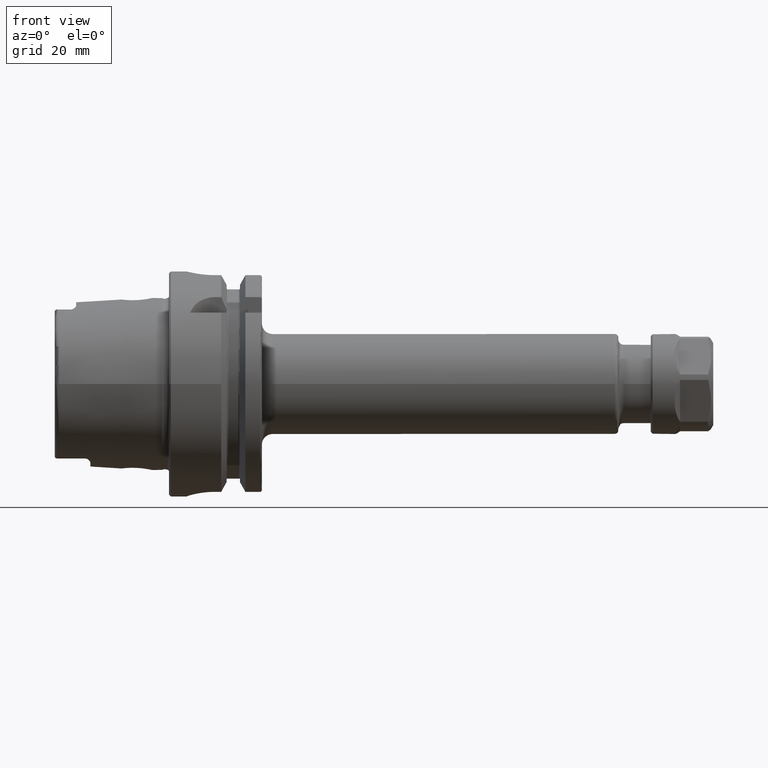
[diagram: clean part render]
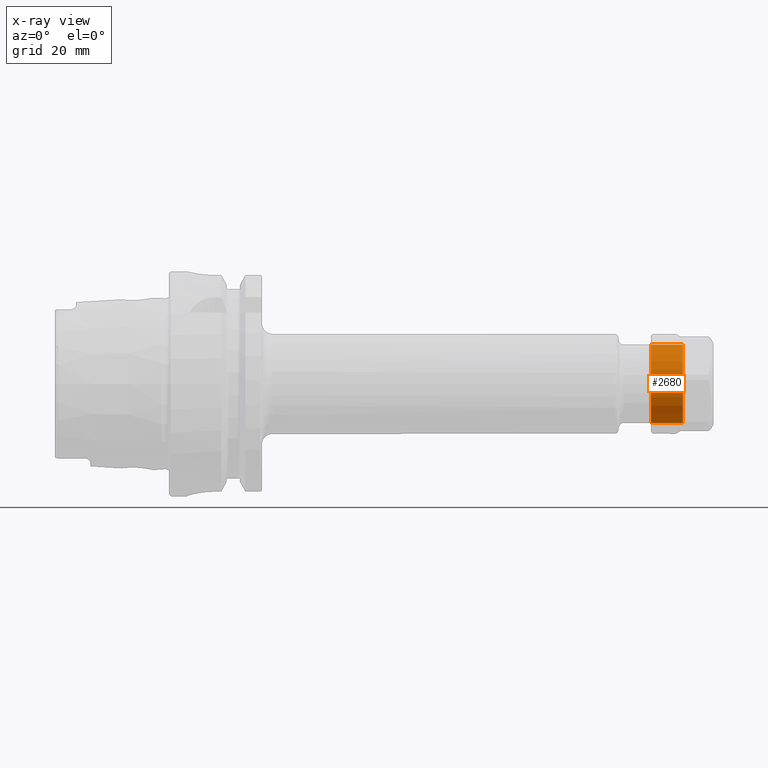
[diagram: x-ray — body ghosted, one internal face saturated and labeled with its STEP entity id]
A machine part, front view, then the same camera in x-ray: the body is ghosted and one INTERNAL B-rep face — a face not visible from any outside direction — is saturated and labeled: STEP entity #2680.
In plain terms, the highlighted cylindrical surface (bore or boss wall) has radius 11 mm, axis along (-1, 0, 0).
Its self-contained STEP definition (entity closure, byte-faithful):
#404=FACE_OUTER_BOUND('',#574,.T.);
#574=EDGE_LOOP('',(#2481,#2482,#2483,#2484));
#720=LINE('',#5538,#866);
#866=VECTOR('',#3877,11.);
#1025=CIRCLE('',#3072,11.);
#1026=CIRCLE('',#3073,11.);
#1285=VERTEX_POINT('',#5535);
#1286=VERTEX_POINT('',#5537);
#1684=EDGE_CURVE('',#1285,#1285,#1025,.T.);
#1685=EDGE_CURVE('',#1285,#1286,#720,.T.);
#1686=EDGE_CURVE('',#1286,#1286,#1026,.T.);
#2481=ORIENTED_EDGE('',*,*,#1684,.F.);
#2482=ORIENTED_EDGE('',*,*,#1685,.T.);
#2483=ORIENTED_EDGE('',*,*,#1686,.F.);
#2484=ORIENTED_EDGE('',*,*,#1685,.F.);
#2527=CYLINDRICAL_SURFACE('',#3071,11.);
#2680=ADVANCED_FACE('',(#404),#2527,.T.);
#3071=AXIS2_PLACEMENT_3D('',#5534,#3873,#3874);
#3072=AXIS2_PLACEMENT_3D('',#5536,#3875,#3876);
#3073=AXIS2_PLACEMENT_3D('',#5539,#3878,#3879);
#3873=DIRECTION('center_axis',(-1.,0.,0.));
#3874=DIRECTION('ref_axis',(0.,-1.,0.));
#3875=DIRECTION('center_axis',(-1.,0.,0.));
#3876=DIRECTION('ref_axis',(0.,-1.,0.));
#3877=DIRECTION('',(1.,0.,0.));
#3878=DIRECTION('center_axis',(1.,0.,0.));
#3879=DIRECTION('ref_axis',(0.,1.,0.));
#5534=CARTESIAN_POINT('Origin',(-8.75,0.,0.));
#5535=CARTESIAN_POINT('',(-8.75,11.,0.));
#5536=CARTESIAN_POINT('Origin',(-8.75,0.,0.));
#5537=CARTESIAN_POINT('',(0.25,11.,0.));
#5538=CARTESIAN_POINT('',(-8.75,11.,-1.34711147906209E-15));
#5539=CARTESIAN_POINT('Origin',(0.25,0.,0.));